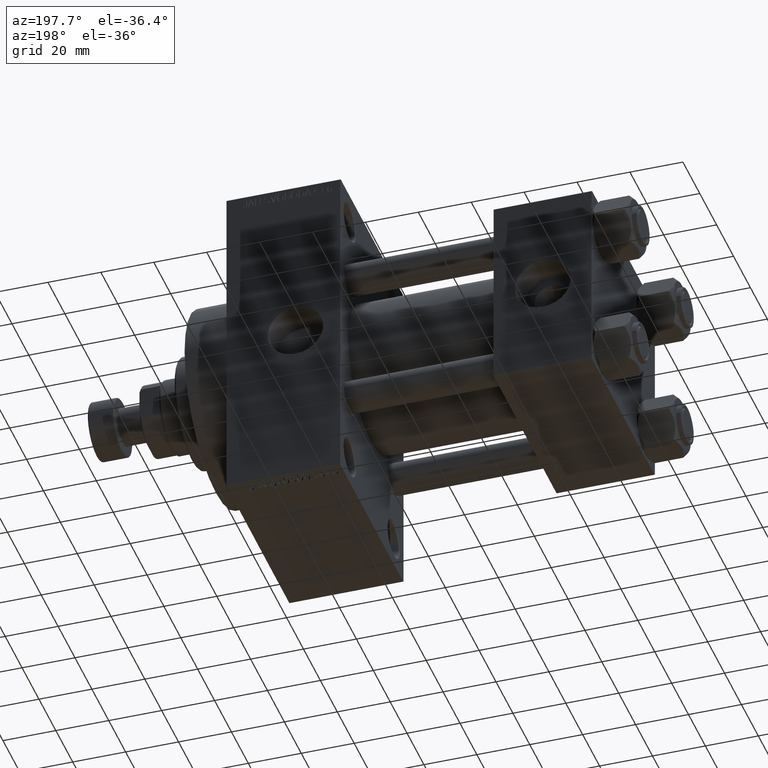
[diagram: clean part render]
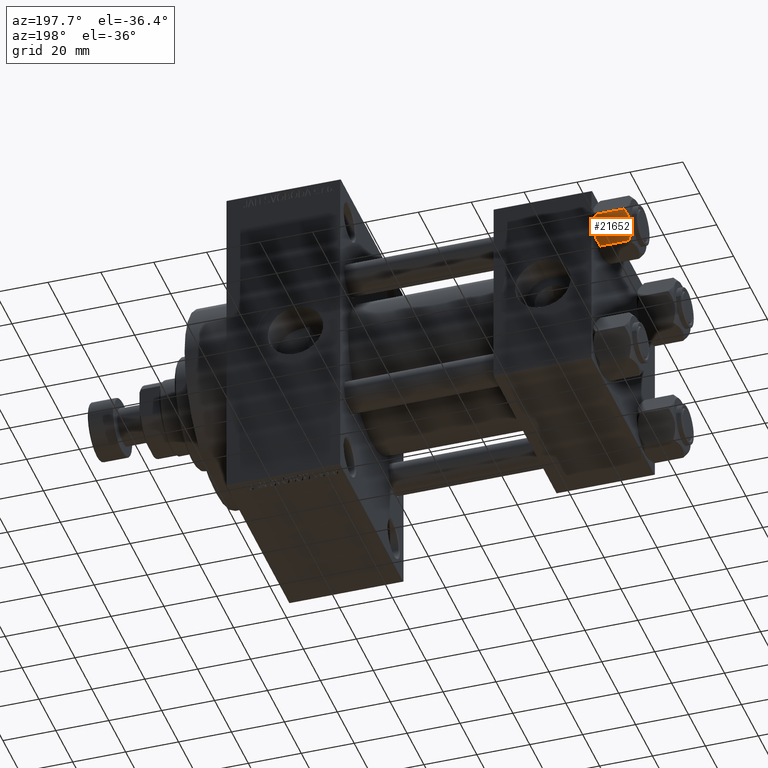
[diagram: same view with one face highlighted and labeled with its STEP entity id]
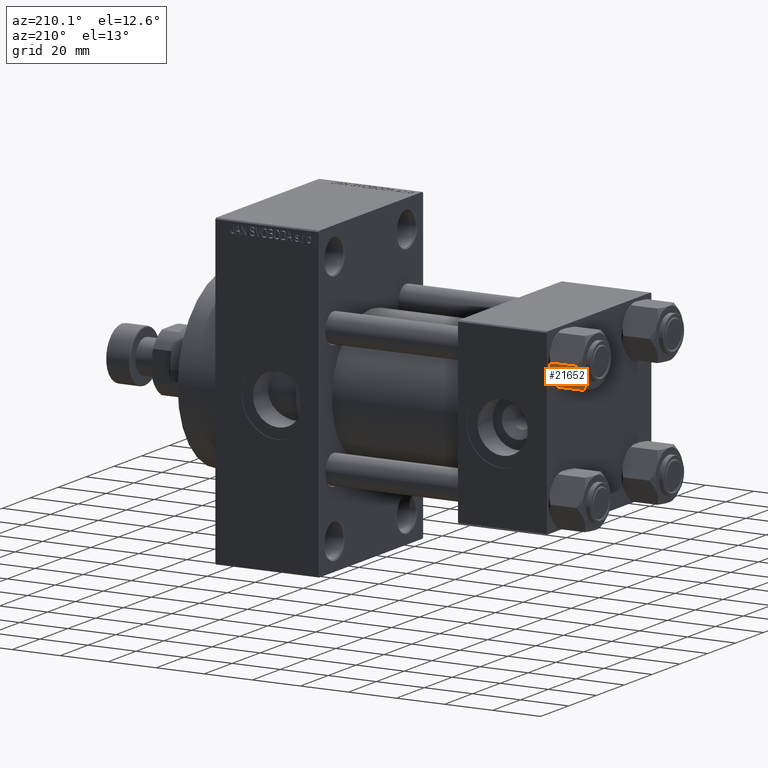
[diagram: same view with one face highlighted and labeled with its STEP entity id]
A machine part, auxiliary view. The second image highlights one B-rep face of the part: STEP entity #21652.
A second angle (auxiliary view) of the same face is appended — the face is thin or edge-on in the first view.
In plain terms, the highlighted planar face has unit normal (-0, -0.866, 0.5).
Its self-contained STEP definition (entity closure, byte-faithful):
#2100 = VERTEX_POINT ( 'NONE', #23616 ) ;
#2299 = CARTESIAN_POINT ( 'NONE',  ( 11.62000000000000099, -1.813166800014576593E-15, -14.00000000000000000 ) ) ;
#2874 = CARTESIAN_POINT ( 'NONE',  ( 10.69859855102501278, 1.595914123792262718, -0.7141438259524649501 ) ) ;
#2948 = LINE ( 'NONE', #38039, #20376 ) ;
#3419 = CARTESIAN_POINT ( 'NONE',  ( 8.209704053696576409, 5.906805847843727086, 3.430483436379916373E-15 ) ) ;
#4426 = CARTESIAN_POINT ( 'NONE',  ( 5.810000000000000497, 10.06321519197518022, -12.44321519197518455 ) ) ;
#5217 = VERTEX_POINT ( 'NONE', #25675 ) ;
#5228 = CARTESIAN_POINT ( 'NONE',  ( 11.16498164529022574, 0.7881149087337292469, -12.89823354668504862 ) ) ;
#5261 = CARTESIAN_POINT ( 'NONE',  ( 8.715000000000005187, 5.031607595987590109, -14.00000000000000000 ) ) ;
#7444 = CARTESIAN_POINT ( 'NONE',  ( 6.733375043383499126, 8.463882702393844326, -0.7114554706434494946 ) ) ;
#7938 = CARTESIAN_POINT ( 'NONE',  ( 5.810000000000000497, 10.06321519197518022, -1.556784808024815892 ) ) ;
#8449 = CARTESIAN_POINT ( 'NONE',  ( 6.731401448974991375, 8.467301068182917945, -13.28585617404753627 ) ) ;
#9488 = ORIENTED_EDGE ( 'NONE', *, *, #15909, .F. ) ;
#10178 = FACE_OUTER_BOUND ( 'NONE', #43293, .T. ) ;
#10684 = CARTESIAN_POINT ( 'NONE',  ( 11.16445427487472131, 0.7890283410877956261, -1.101239082899531985 ) ) ;
#10932 = CARTESIAN_POINT ( 'NONE',  ( 9.227666995912102266, 4.143642311704121894, -0.03994118060690670519 ) ) ;
#11019 = B_SPLINE_CURVE_WITH_KNOTS ( 'NONE', 3,
 ( #22806, #10684, #2874, #45057, #14210, #10932, #34180, #49609 ),
 .UNSPECIFIED., .F., .F.,
 ( 4, 2, 2, 4 ),
 ( 2.544312114903581015E-07, 0.003011550106433540791, 0.004517197944044564449, 0.006022845781655588107 ),
 .UNSPECIFIED. ) ;
#12775 = CARTESIAN_POINT ( 'NONE',  ( 8.715000000000005187, 5.031607595987590109, -14.00000000000000000 ) ) ;
#14210 = CARTESIAN_POINT ( 'NONE',  ( 9.729165168613654657, 3.275021996682081493, -0.1903979688073405840 ) ) ;
#14530 = DIRECTION ( 'NONE',  ( -0.000000000000000000, -0.000000000000000000, 1.000000000000000000 ) ) ;
#14843 = B_SPLINE_CURVE_WITH_KNOTS ( 'NONE', 3,
 ( #45603, #3419, #45848, #7444, #22603, #7938 ),
 .UNSPECIFIED., .F., .F.,
 ( 4, 2, 4 ),
 ( 0.006022845781655588107, 0.009013049135303636758, 0.01200325248895168367 ),
 .UNSPECIFIED. ) ;
#15524 = CARTESIAN_POINT ( 'NONE',  ( 8.460569896449618099, 5.472293462311861312, -14.00000000000000000 ) ) ;
#15909 = EDGE_CURVE ( 'NONE', #23544, #21080, #40919, .T. ) ;
#16805 = EDGE_CURVE ( 'NONE', #2100, #32268, #14843, .T. ) ;
#17061 = CARTESIAN_POINT ( 'NONE',  ( 9.716999946243698005, 3.296092779912226156, -13.84547602999602134 ) ) ;
#17669 = DIRECTION ( 'NONE',  ( -0.000000000000000000, -0.000000000000000000, 1.000000000000000000 ) ) ;
#18535 = EDGE_CURVE ( 'NONE', #47776, #23544, #40618, .T. ) ;
#18720 = B_SPLINE_CURVE_WITH_KNOTS ( 'NONE', 3,
 ( #4426, #46860, #8449, #42803, #30943, #27393, #15524, #43058 ),
 .UNSPECIFIED., .F., .F.,
 ( 4, 2, 2, 4 ),
 ( 2.544312114902182352E-07, 0.003011550106433542526, 0.004517197944044567919, 0.006022845781655592444 ),
 .UNSPECIFIED. ) ;
#20376 = VECTOR ( 'NONE', #14530, 1000.000000000000000 ) ;
#21080 = VERTEX_POINT ( 'NONE', #45546 ) ;
#21652 = ADVANCED_FACE ( 'NONE', ( #10178 ), #45794, .F. ) ;
#22364 = EDGE_CURVE ( 'NONE', #5217, #47776, #18720, .T. ) ;
#22603 = CARTESIAN_POINT ( 'NONE',  ( 6.265018354709773973, 9.275100283241448196, -1.101766453314953154 ) ) ;
#22806 = CARTESIAN_POINT ( 'NONE',  ( 11.62000000000000099, -1.924525737834042474E-15, -1.556784808024813893 ) ) ;
#23223 = ORIENTED_EDGE ( 'NONE', *, *, #18535, .F. ) ;
#23544 = VERTEX_POINT ( 'NONE', #27095 ) ;
#23616 = CARTESIAN_POINT ( 'NONE',  ( 8.715000000000005187, 5.031607595987590109, 0.000000000000000000 ) ) ;
#25675 = CARTESIAN_POINT ( 'NONE',  ( 5.810000000000000497, 10.06321519197518022, -12.44321519197518455 ) ) ;
#26336 = CARTESIAN_POINT ( 'NONE',  ( 5.810000000000000497, 10.06321519197518022, -14.00000000000000000 ) ) ;
#26804 = ORIENTED_EDGE ( 'NONE', *, *, #37885, .T. ) ;
#27095 = CARTESIAN_POINT ( 'NONE',  ( 11.62000000000000099, -1.689012838886770227E-15, -12.44321519197518633 ) ) ;
#27393 = CARTESIAN_POINT ( 'NONE',  ( 8.202333004087901003, 5.919572880271053883, -13.96005881939309567 ) ) ;
#28446 = CARTESIAN_POINT ( 'NONE',  ( 10.69662495661650503, 1.599332489581333672, -13.28854452935655139 ) ) ;
#30527 = ORIENTED_EDGE ( 'NONE', *, *, #43914, .F. ) ;
#30943 = CARTESIAN_POINT ( 'NONE',  ( 7.700834831386345058, 6.788193195293094284, -13.80960203119265906 ) ) ;
#32268 = VERTEX_POINT ( 'NONE', #39823 ) ;
#34180 = CARTESIAN_POINT ( 'NONE',  ( 8.969430103550381617, 4.590921729663312689, 3.523657060577888622E-15 ) ) ;
#36033 = CARTESIAN_POINT ( 'NONE',  ( 11.62000000000000099, -1.689012838886770227E-15, -12.44321519197518633 ) ) ;
#37208 = DIRECTION ( 'NONE',  ( 0.4999999999999998335, -0.8660254037844387076, 0.000000000000000000 ) ) ;
#37885 = EDGE_CURVE ( 'NONE', #5217, #32268, #2948, .T. ) ;
#38039 = CARTESIAN_POINT ( 'NONE',  ( 5.810000000000000497, 10.06321519197518022, -14.00000000000000000 ) ) ;
#39823 = CARTESIAN_POINT ( 'NONE',  ( 5.810000000000000497, 10.06321519197518022, -1.556784808024815892 ) ) ;
#40618 = B_SPLINE_CURVE_WITH_KNOTS ( 'NONE', 3,
 ( #12775, #42680, #17061, #28446, #5228, #36033 ),
 .UNSPECIFIED., .F., .F.,
 ( 4, 2, 4 ),
 ( 0.006022845781655592444, 0.009013049135303636758, 0.01200325248895168194 ),
 .UNSPECIFIED. ) ;
#40919 = LINE ( 'NONE', #2299, #47908 ) ;
#41000 = DIRECTION ( 'NONE',  ( -0.8660254037844387076, -0.4999999999999998335, 0.000000000000000000 ) ) ;
#42680 = CARTESIAN_POINT ( 'NONE',  ( 9.220295946303432189, 4.156409344131451356, -14.00000000000000178 ) ) ;
#42803 = CARTESIAN_POINT ( 'NONE',  ( 7.455303369716807182, 7.213466161761384221, -13.69973261901325934 ) ) ;
#43058 = CARTESIAN_POINT ( 'NONE',  ( 8.715000000000005187, 5.031607595987590109, -14.00000000000000000 ) ) ;
#43293 = EDGE_LOOP ( 'NONE', ( #43707, #26804, #44877, #30527, #9488, #23223 ) ) ;
#43707 = ORIENTED_EDGE ( 'NONE', *, *, #22364, .F. ) ;
#43914 = EDGE_CURVE ( 'NONE', #21080, #2100, #11019, .T. ) ;
#44877 = ORIENTED_EDGE ( 'NONE', *, *, #16805, .F. ) ;
#45057 = CARTESIAN_POINT ( 'NONE',  ( 9.974696630283190757, 2.849749030213792000, -0.3002673809867367205 ) ) ;
#45546 = CARTESIAN_POINT ( 'NONE',  ( 11.62000000000000099, -1.924525737834042474E-15, -1.556784808024813893 ) ) ;
#45603 = CARTESIAN_POINT ( 'NONE',  ( 8.715000000000005187, 5.031607595987590109, 0.000000000000000000 ) ) ;
#45794 = PLANE ( 'NONE',  #48924 ) ;
#45848 = CARTESIAN_POINT ( 'NONE',  ( 7.713000053756307928, 6.767122412062951398, -0.1545239700039825748 ) ) ;
#46860 = CARTESIAN_POINT ( 'NONE',  ( 6.265545725125286403, 9.274186850887383926, -12.89876091710046957 ) ) ;
#47776 = VERTEX_POINT ( 'NONE', #5261 ) ;
#47908 = VECTOR ( 'NONE', #17669, 1000.000000000000000 ) ;
#48924 = AXIS2_PLACEMENT_3D ( 'NONE', #26336, #41000, #37208 ) ;
#49609 = CARTESIAN_POINT ( 'NONE',  ( 8.715000000000005187, 5.031607595987590109, 0.000000000000000000 ) ) ;